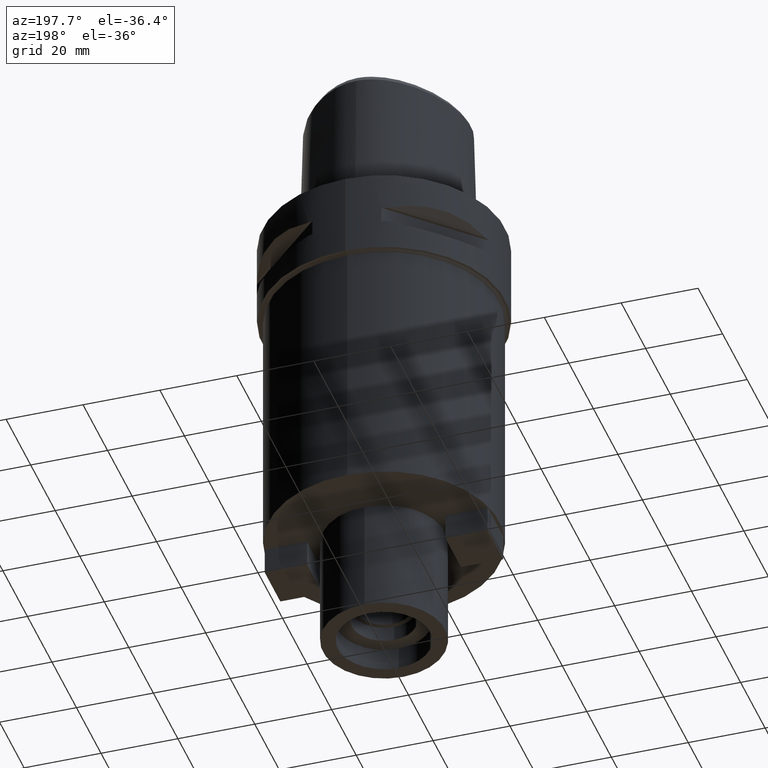
[diagram: clean part render]
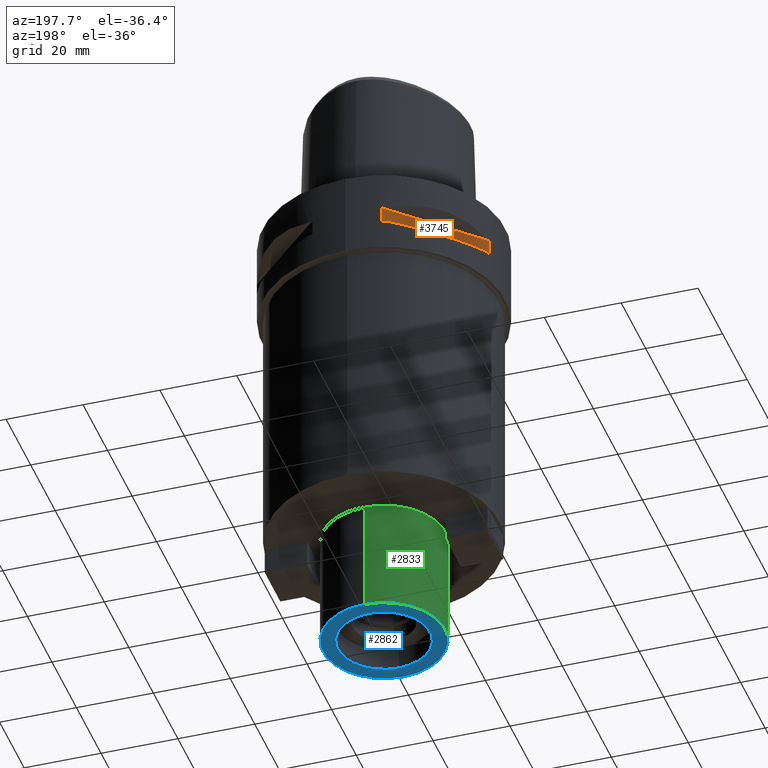
[diagram: same view with three faces highlighted in distinct colors, each labeled with its STEP entity id]
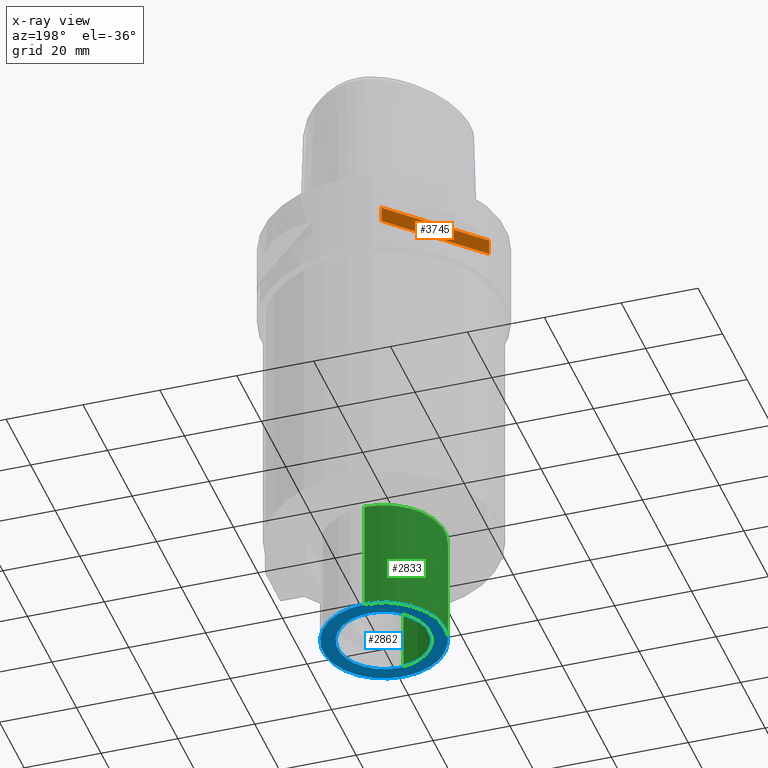
[diagram: x-ray of the same camera — body ghosted, the three highlighted faces saturated]
A machine part, auxiliary view with three faces highlighted in distinct colors.
The next image is the same camera in x-ray (body ghosted, the three faces saturated) — at least one of them is partly hidden behind the body in this view.
Their STEP definitions:

[orange] entity #3745 — the highlighted planar face has unit normal (0.7071, -0.7071, 0).
#402=DIRECTION('',(0.E0,0.E0,-1.E0));
#403=VECTOR('',#402,4.1E0);
#404=CARTESIAN_POINT('',(-8.981198972018E0,3.019251670572E1,-9.95E0));
#405=LINE('',#404,#403);
#420=DIRECTION('',(0.E0,0.E0,1.E0));
#421=VECTOR('',#420,4.1E0);
#422=CARTESIAN_POINT('',(-3.019251670572E1,8.981198972018E0,-1.405E1));
#423=LINE('',#422,#421);
#1609=DIRECTION('',(-7.071067811865E-1,-7.071067811865E-1,0.E0));
#1610=VECTOR('',#1609,2.999733321480E1);
#1611=CARTESIAN_POINT('',(-8.981198972018E0,3.019251670572E1,-9.95E0));
#1612=LINE('',#1611,#1610);
#1632=DIRECTION('',(-7.071067811865E-1,-7.071067811865E-1,0.E0));
#1633=VECTOR('',#1632,2.999733321480E1);
#1634=CARTESIAN_POINT('',(-8.981198972018E0,3.019251670572E1,-1.405E1));
#1635=LINE('',#1634,#1633);
#1742=CARTESIAN_POINT('',(-8.981198972020E0,3.019251670572E1,-9.95E0));
#1743=VERTEX_POINT('',#1742);
#1744=CARTESIAN_POINT('',(-8.981198972018E0,3.019251670572E1,-1.405E1));
#1745=VERTEX_POINT('',#1744);
#1749=CARTESIAN_POINT('',(-3.019251670572E1,8.981198972020E0,-1.405E1));
#1750=VERTEX_POINT('',#1749);
#1751=CARTESIAN_POINT('',(-3.019251670572E1,8.981198972018E0,-9.95E0));
#1752=VERTEX_POINT('',#1751);
#3733=CARTESIAN_POINT('',(-3.372899346260E1,5.444722215136E0,-9.95E0));
#3734=DIRECTION('',(7.071067811865E-1,-7.071067811865E-1,0.E0));
#3735=DIRECTION('',(0.E0,0.E0,-1.E0));
#3736=AXIS2_PLACEMENT_3D('',#3733,#3734,#3735);
#3737=PLANE('',#3736);
#3738=ORIENTED_EDGE('',*,*,#2637,.F.);
#3740=ORIENTED_EDGE('',*,*,#3739,.F.);
#3741=ORIENTED_EDGE('',*,*,#2629,.F.);
#3742=ORIENTED_EDGE('',*,*,#3726,.T.);
#3743=EDGE_LOOP('',(#3738,#3740,#3741,#3742));
#3744=FACE_OUTER_BOUND('',#3743,.F.);
#2629=EDGE_CURVE('',#1743,#1745,#405,.T.);
#2637=EDGE_CURVE('',#1750,#1752,#423,.T.);
#3726=EDGE_CURVE('',#1743,#1752,#1612,.T.);
#3739=EDGE_CURVE('',#1745,#1750,#1635,.T.);
#3745=ADVANCED_FACE('',(#3744),#3737,.F.);

[blue] entity #2862 — the highlighted planar face has unit normal (0, 0, -1).
#692=CARTESIAN_POINT('',(0.E0,1.298125607096E-14,-1.2E2));
#693=DIRECTION('',(0.E0,0.E0,1.E0));
#694=DIRECTION('',(0.E0,-1.E0,0.E0));
#695=AXIS2_PLACEMENT_3D('',#692,#693,#694);
#700=CARTESIAN_POINT('',(0.E0,1.298125607096E-14,-1.2E2));
#701=DIRECTION('',(0.E0,0.E0,1.E0));
#702=DIRECTION('',(0.E0,1.E0,0.E0));
#703=AXIS2_PLACEMENT_3D('',#700,#701,#702);
#708=CARTESIAN_POINT('',(0.E0,1.298125607096E-14,-1.2E2));
#709=DIRECTION('',(0.E0,0.E0,-1.E0));
#710=DIRECTION('',(0.E0,-1.E0,0.E0));
#711=AXIS2_PLACEMENT_3D('',#708,#709,#710);
#716=CARTESIAN_POINT('',(0.E0,1.298125607096E-14,-1.2E2));
#717=DIRECTION('',(0.E0,0.E0,-1.E0));
#718=DIRECTION('',(0.E0,1.E0,0.E0));
#719=AXIS2_PLACEMENT_3D('',#716,#717,#718);
#1824=CARTESIAN_POINT('',(0.E0,1.5875E1,-1.2E2));
#1825=VERTEX_POINT('',#1824);
#1826=CARTESIAN_POINT('',(0.E0,-1.5875E1,-1.2E2));
#1827=VERTEX_POINT('',#1826);
#1828=CARTESIAN_POINT('',(0.E0,-1.2E1,-1.2E2));
#1829=CARTESIAN_POINT('',(0.E0,1.2E1,-1.2E2));
#1830=VERTEX_POINT('',#1828);
#1831=VERTEX_POINT('',#1829);
#2847=CARTESIAN_POINT('',(0.E0,0.E0,-1.2E2));
#2848=DIRECTION('',(0.E0,0.E0,-1.E0));
#2849=DIRECTION('',(0.E0,-1.E0,0.E0));
#2850=AXIS2_PLACEMENT_3D('',#2847,#2848,#2849);
#2851=PLANE('',#2850);
#2852=ORIENTED_EDGE('',*,*,#2840,.T.);
#2853=ORIENTED_EDGE('',*,*,#2829,.T.);
#2854=EDGE_LOOP('',(#2852,#2853));
#2855=FACE_OUTER_BOUND('',#2854,.F.);
#2857=ORIENTED_EDGE('',*,*,#2856,.T.);
#2859=ORIENTED_EDGE('',*,*,#2858,.T.);
#2860=EDGE_LOOP('',(#2857,#2859));
#2861=FACE_BOUND('',#2860,.F.);
#696=CIRCLE('',#695,1.5875E1);
#704=CIRCLE('',#703,1.5875E1);
#712=CIRCLE('',#711,1.2E1);
#720=CIRCLE('',#719,1.2E1);
#2829=EDGE_CURVE('',#1825,#1827,#704,.T.);
#2840=EDGE_CURVE('',#1827,#1825,#696,.T.);
#2856=EDGE_CURVE('',#1830,#1831,#712,.T.);
#2858=EDGE_CURVE('',#1831,#1830,#720,.T.);
#2862=ADVANCED_FACE('',(#2855,#2861),#2851,.T.);

[green] entity #2833 — the highlighted cylindrical surface (partial cylindrical patch) has radius 15.875 mm, axis along (0, 0, -1).
#634=CARTESIAN_POINT('',(0.E0,1.298125607096E-14,-9.E1));
#635=DIRECTION('',(0.E0,0.E0,-1.E0));
#636=DIRECTION('',(0.E0,-1.E0,0.E0));
#637=AXIS2_PLACEMENT_3D('',#634,#635,#636);
#678=DIRECTION('',(0.E0,0.E0,-1.E0));
#679=VECTOR('',#678,3.E1);
#680=CARTESIAN_POINT('',(0.E0,-1.5875E1,-9.E1));
#681=LINE('',#680,#679);
#685=DIRECTION('',(0.E0,0.E0,-1.E0));
#686=VECTOR('',#685,3.E1);
#687=CARTESIAN_POINT('',(0.E0,1.5875E1,-9.E1));
#688=LINE('',#687,#686);
#700=CARTESIAN_POINT('',(0.E0,1.298125607096E-14,-1.2E2));
#701=DIRECTION('',(0.E0,0.E0,1.E0));
#702=DIRECTION('',(0.E0,1.E0,0.E0));
#703=AXIS2_PLACEMENT_3D('',#700,#701,#702);
#1804=CARTESIAN_POINT('',(0.E0,-1.5875E1,-9.E1));
#1805=CARTESIAN_POINT('',(0.E0,1.5875E1,-9.E1));
#1806=VERTEX_POINT('',#1804);
#1807=VERTEX_POINT('',#1805);
#1824=CARTESIAN_POINT('',(0.E0,1.5875E1,-1.2E2));
#1825=VERTEX_POINT('',#1824);
#1826=CARTESIAN_POINT('',(0.E0,-1.5875E1,-1.2E2));
#1827=VERTEX_POINT('',#1826);
#2819=CARTESIAN_POINT('',(0.E0,1.298125607096E-14,6.E0));
#2820=DIRECTION('',(0.E0,0.E0,-1.E0));
#2821=DIRECTION('',(0.E0,-1.E0,0.E0));
#2822=AXIS2_PLACEMENT_3D('',#2819,#2820,#2821);
#2823=CYLINDRICAL_SURFACE('',#2822,1.5875E1);
#2825=ORIENTED_EDGE('',*,*,#2824,.F.);
#2826=ORIENTED_EDGE('',*,*,#2792,.F.);
#2828=ORIENTED_EDGE('',*,*,#2827,.T.);
#2830=ORIENTED_EDGE('',*,*,#2829,.F.);
#2831=EDGE_LOOP('',(#2825,#2826,#2828,#2830));
#2832=FACE_OUTER_BOUND('',#2831,.F.);
#638=CIRCLE('',#637,1.5875E1);
#704=CIRCLE('',#703,1.5875E1);
#2792=EDGE_CURVE('',#1806,#1807,#638,.T.);
#2824=EDGE_CURVE('',#1807,#1825,#688,.T.);
#2827=EDGE_CURVE('',#1806,#1827,#681,.T.);
#2829=EDGE_CURVE('',#1825,#1827,#704,.T.);
#2833=ADVANCED_FACE('',(#2832),#2823,.T.);